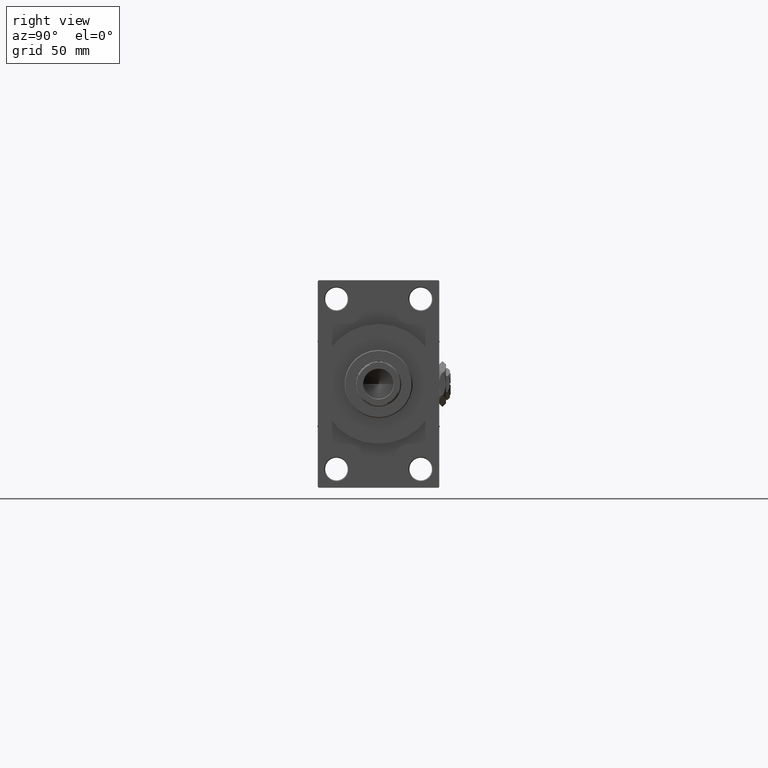
[diagram: clean part render]
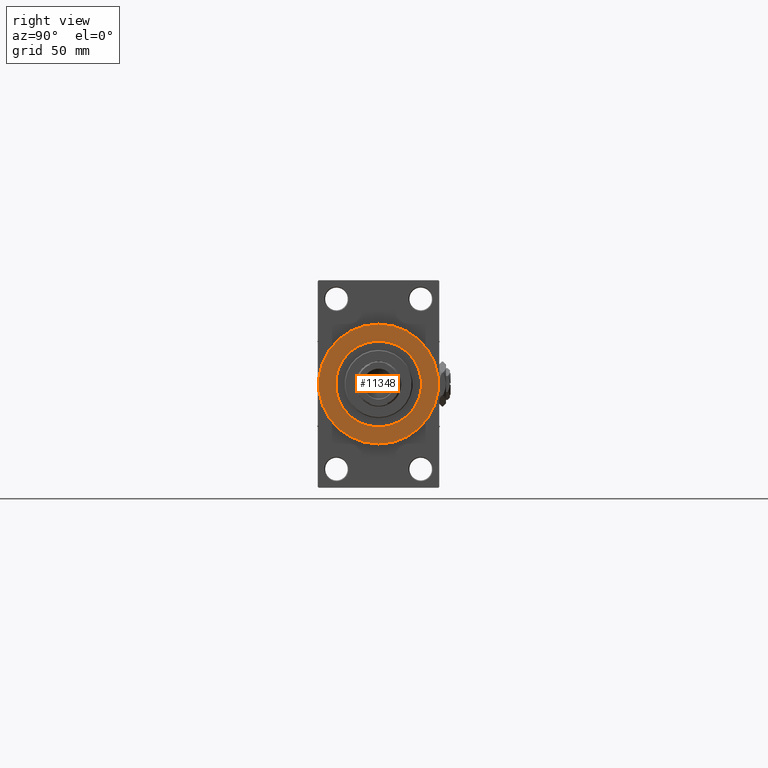
[diagram: same view with one face highlighted and labeled with its STEP entity id]
A machine part, right view. The second image highlights one B-rep face of the part: STEP entity #11348.
In plain terms, the highlighted planar face has unit normal (1, 0, 0).
Its self-contained STEP definition (entity closure, byte-faithful):
#22 = ORIENTED_EDGE ( 'NONE', *, *, #8565, .T. ) ;
#56 = CARTESIAN_POINT ( 'NONE',  ( 383.9999999999999432, 0.000000000000000000, 0.000000000000000000 ) ) ;
#305 = CIRCLE ( 'NONE', #32939, 37.00000000000000000 ) ;
#1563 = CARTESIAN_POINT ( 'NONE',  ( 383.9999999999999432, 3.245314017740486554E-15, 26.50000000000000355 ) ) ;
#3550 = DIRECTION ( 'NONE',  ( 0.000000000000000000, 0.000000000000000000, -1.000000000000000000 ) ) ;
#4667 = DIRECTION ( 'NONE',  ( 0.000000000000000000, 0.000000000000000000, -1.000000000000000000 ) ) ;
#5431 = PLANE ( 'NONE',  #35233 ) ;
#6459 = VERTEX_POINT ( 'NONE', #12001 ) ;
#8540 = DIRECTION ( 'NONE',  ( 0.000000000000000000, 0.000000000000000000, -1.000000000000000000 ) ) ;
#8555 = VERTEX_POINT ( 'NONE', #1563 ) ;
#8565 = EDGE_CURVE ( 'NONE', #36216, #6459, #8848, .T. ) ;
#8848 = CIRCLE ( 'NONE', #15219, 37.00000000000000000 ) ;
#11078 = EDGE_LOOP ( 'NONE', ( #41781, #35180 ) ) ;
#11348 = ADVANCED_FACE ( 'NONE', ( #17869, #16903 ), #5431, .T. ) ;
#11608 = DIRECTION ( 'NONE',  ( 0.000000000000000000, 0.000000000000000000, -1.000000000000000000 ) ) ;
#11933 = CARTESIAN_POINT ( 'NONE',  ( 383.9999999999999432, 4.531193156845206793E-15, -37.00000000000000000 ) ) ;
#12001 = CARTESIAN_POINT ( 'NONE',  ( 383.9999999999999432, 0.000000000000000000, 37.00000000000000000 ) ) ;
#12272 = CARTESIAN_POINT ( 'NONE',  ( 383.9999999999999432, 0.000000000000000000, 0.000000000000000000 ) ) ;
#12782 = DIRECTION ( 'NONE',  ( 1.000000000000000000, 0.000000000000000000, 0.000000000000000000 ) ) ;
#14063 = AXIS2_PLACEMENT_3D ( 'NONE', #12272, #27739, #8540 ) ;
#15219 = AXIS2_PLACEMENT_3D ( 'NONE', #30310, #12782, #11608 ) ;
#16903 = FACE_OUTER_BOUND ( 'NONE', #47925, .T. ) ;
#17042 = AXIS2_PLACEMENT_3D ( 'NONE', #56, #19510, #3550 ) ;
#17869 = FACE_BOUND ( 'NONE', #11078, .T. ) ;
#18674 = VERTEX_POINT ( 'NONE', #35061 ) ;
#19510 = DIRECTION ( 'NONE',  ( 1.000000000000000000, 0.000000000000000000, 0.000000000000000000 ) ) ;
#20642 = DIRECTION ( 'NONE',  ( 0.000000000000000000, 0.000000000000000000, -1.000000000000000000 ) ) ;
#23379 = CARTESIAN_POINT ( 'NONE',  ( 383.9999999999999432, 0.000000000000000000, 0.000000000000000000 ) ) ;
#24434 = CIRCLE ( 'NONE', #14063, 26.50000000000000355 ) ;
#25796 = CIRCLE ( 'NONE', #17042, 26.50000000000000355 ) ;
#27365 = DIRECTION ( 'NONE',  ( 1.000000000000000000, 0.000000000000000000, 0.000000000000000000 ) ) ;
#27739 = DIRECTION ( 'NONE',  ( 1.000000000000000000, 0.000000000000000000, 0.000000000000000000 ) ) ;
#27945 = EDGE_CURVE ( 'NONE', #18674, #8555, #24434, .T. ) ;
#29422 = ORIENTED_EDGE ( 'NONE', *, *, #46042, .T. ) ;
#30310 = CARTESIAN_POINT ( 'NONE',  ( 383.9999999999999432, 0.000000000000000000, 0.000000000000000000 ) ) ;
#32939 = AXIS2_PLACEMENT_3D ( 'NONE', #23379, #27365, #4667 ) ;
#35061 = CARTESIAN_POINT ( 'NONE',  ( 383.9999999999999432, 0.000000000000000000, -26.50000000000000355 ) ) ;
#35180 = ORIENTED_EDGE ( 'NONE', *, *, #45309, .F. ) ;
#35233 = AXIS2_PLACEMENT_3D ( 'NONE', #43556, #36573, #20642 ) ;
#36216 = VERTEX_POINT ( 'NONE', #11933 ) ;
#36573 = DIRECTION ( 'NONE',  ( 1.000000000000000000, 0.000000000000000000, 0.000000000000000000 ) ) ;
#41781 = ORIENTED_EDGE ( 'NONE', *, *, #27945, .F. ) ;
#43556 = CARTESIAN_POINT ( 'NONE',  ( 383.9999999999999432, 0.000000000000000000, 0.000000000000000000 ) ) ;
#45309 = EDGE_CURVE ( 'NONE', #8555, #18674, #25796, .T. ) ;
#46042 = EDGE_CURVE ( 'NONE', #6459, #36216, #305, .T. ) ;
#47925 = EDGE_LOOP ( 'NONE', ( #29422, #22 ) ) ;